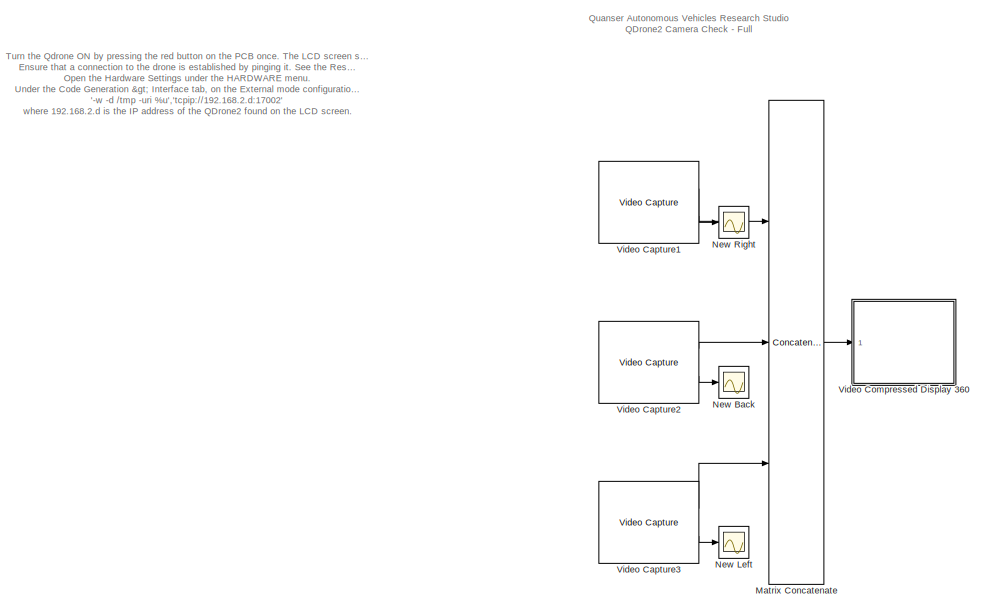
[diagram: root canvas - part 1/2, left side, full height]
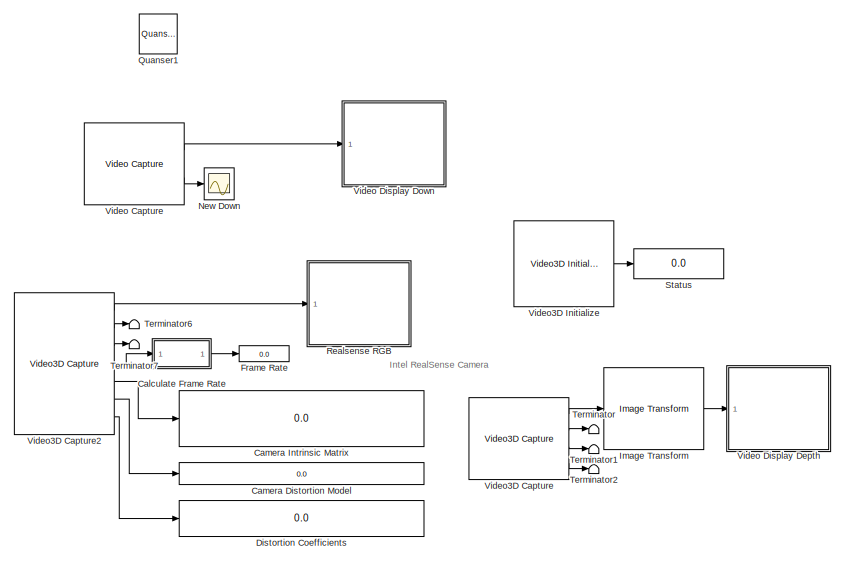
[diagram: root canvas - part 2/2, right side, full height]
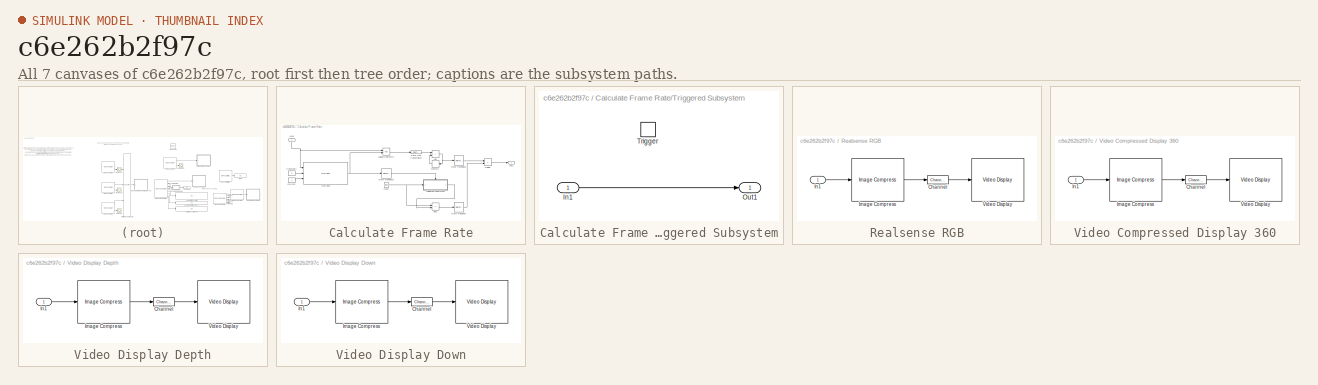
[diagram: thumbnail index - all 7 canvases of the model, root first then tree order]
MODEL slx_c6e262b2f97c
KIND model
CONFIG AbsTol = auto
CONFIG EnableMultiTasking = on
CONFIG FixedStep = 0.002
CONFIG MaxStep = auto
CONFIG MinStep = auto
CONFIG RelTol = 1e-3
CONFIG SampleTimeConstraint = Unconstrained
CONFIG SolverName = ode2
CONFIG StartTime = 0.0
CONFIG StopTime = inf
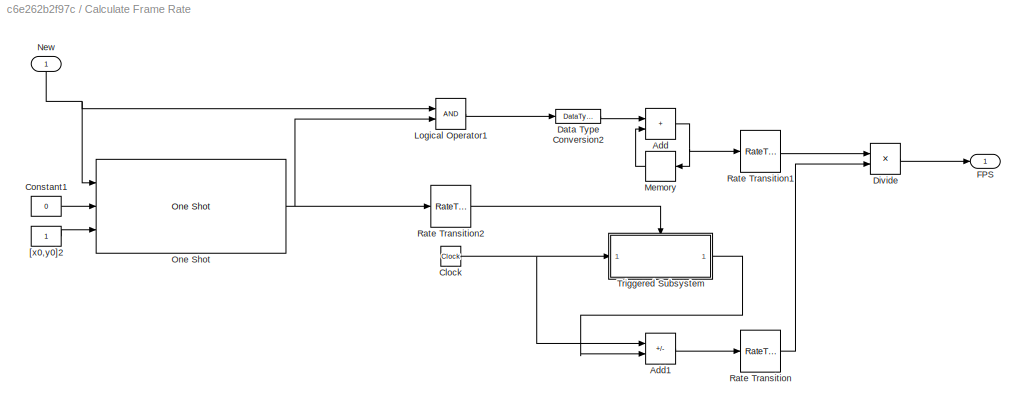
BLOCK [SubSystem] Calculate Frame Rate
  Ports = [1, 1]
  RequestExecContextInheritance = off
BLOCK [Sum] Calculate Frame Rate/Add
  IconShape = rectangular
  NameLocation = top
  Ports = [2, 1]
BLOCK [Sum] Calculate Frame Rate/Add1
  IconShape = rectangular
  Inputs = +-
  Ports = [2, 1]
BLOCK [Clock] Calculate Frame Rate/Clock
  Decimation = 1
BLOCK [Constant] Calculate Frame Rate/Constant1
  Value = 0
BLOCK [DataTypeConversion] Calculate Frame Rate/Data Type Conversion2
  RndMeth = Floor
  SaturateOnIntegerOverflow = off
BLOCK [Product] Calculate Frame Rate/Divide
  Inputs = */
  Ports = [2, 1]
BLOCK [Outport] Calculate Frame Rate/FPS
BLOCK [Logic] Calculate Frame Rate/Logical Operator1
  AllPortsSameDT = off
  OutDataTypeStr = boolean
  Ports = [2, 1]
BLOCK [Memory] Calculate Frame Rate/Memory
  InheritSampleTime = on
BLOCK [Inport] Calculate Frame Rate/New
  NameLocation = right
BLOCK [Reference] Calculate Frame Rate/One Shot  REF=quarc_library/Discontinuities/One Shot
  Ports = [3, 1]
  SourceBlock = quarc_library/Discontinuities/One Shot
  SourceProductName = QUARC Targets
  SourceType = One Shot
BLOCK [RateTransition] Calculate Frame Rate/Rate Transition
BLOCK [RateTransition] Calculate Frame Rate/Rate Transition1
BLOCK [RateTransition] Calculate Frame Rate/Rate Transition2
BLOCK [SubSystem] Calculate Frame Rate/Triggered Subsystem
  Ports = [1, 1, 0, 1]
  RequestExecContextInheritance = off
  TreatAsAtomicUnit = on
BLOCK [Inport] Calculate Frame Rate/Triggered Subsystem/In1
BLOCK [Outport] Calculate Frame Rate/Triggered Subsystem/Out1
BLOCK [TriggerPort] Calculate Frame Rate/Triggered Subsystem/Trigger
  Ports = []
  StatesWhenEnabling = held
  VariantControl = Variant
BLOCK [Constant] Calculate Frame Rate/[x0,y0]2
BLOCK [Display] Camera Distortion Model
  Decimation = 1
  Ports = [1]
BLOCK [Display] Camera Intrinsic Matrix
  Decimation = 1
  Ports = [1]
BLOCK [Display] Distortion Coefficients
  Decimation = 1
  Ports = [1]
BLOCK [Display] Frame Rate
  Decimation = 1
  Ports = [1]
BLOCK [Reference] Image Transform  REF=quarc_library/Image Processing/Generic/Image Transform
  AttributesFormatString = (%<algorithm>)
  Ports = [1, 1]
  SourceBlock = quarc_library/Image Processing/Generic/Image Transform
  SourceProductName = QUARC Targets
  SourceType = Image Transform
BLOCK [Concatenate] Matrix Concatenate
  ConcatenateDimension = 2
  Mode = Multidimensional array
  NumInputs = 3
  Ports = [3, 1]
BLOCK [Scope] New Back
  Floating = off
  NumInputPorts = 1
  Ports = [1]
  ScopeSpecificationString = Simulink.scopes.TimeScopeBlockCfg('CurrentConfiguration', extmgr.ConfigurationSet(extmgr.Configuration('Core','General UI',true),extmgr.Configuration('Core','Source UI',true),extmgr.Configuration('Sources','WiredSimulink',true,'DataLoggingVariableName','ScopeData3','DataLoggingSaveFormat','StructureWithTime','DataLoggingLimitDataPoints',true,'DataLoggingDecimation','1','DataLoggingDecimateData',tr...<+1747ch>
BLOCK [Scope] New Down
  Floating = off
  NumInputPorts = 1
  Ports = [1]
  ScopeSpecificationString = Simulink.scopes.TimeScopeBlockCfg('CurrentConfiguration', extmgr.ConfigurationSet(extmgr.Configuration('Core','General UI',true),extmgr.Configuration('Core','Source UI',true),extmgr.Configuration('Sources','WiredSimulink',true,'DataLoggingSaveFormat','StructureWithTime','DataLoggingLimitDataPoints',true,'DataLoggingDecimation','1','DataLoggingDecimateData',true,'DataLoggingVariableName','ScopeData...<+1727ch>
BLOCK [Scope] New Left
  Floating = off
  NumInputPorts = 1
  Ports = [1]
  ScopeSpecificationString = Simulink.scopes.TimeScopeBlockCfg('CurrentConfiguration', extmgr.ConfigurationSet(extmgr.Configuration('Core','General UI',true),extmgr.Configuration('Core','Source UI',true),extmgr.Configuration('Sources','WiredSimulink',true,'DataLoggingVariableName','ScopeData5','DataLoggingSaveFormat','StructureWithTime','DataLoggingLimitDataPoints',true,'DataLoggingDecimation','1','DataLoggingDecimateData',tr...<+1707ch>
BLOCK [Scope] New Right
  Floating = off
  NumInputPorts = 1
  Ports = [1]
  ScopeSpecificationString = Simulink.scopes.TimeScopeBlockCfg('CurrentConfiguration', extmgr.ConfigurationSet(extmgr.Configuration('Core','General UI',true),extmgr.Configuration('Core','Source UI',true),extmgr.Configuration('Sources','WiredSimulink',true,'DataLoggingVariableName','ScopeData6','DataLoggingSaveFormat','StructureWithTime','DataLoggingLimitDataPoints',true,'DataLoggingDecimation','1','DataLoggingDecimateData',tr...<+1733ch>
BLOCK [Reference] Quanser1  REF=quarc_library/Logos/Quanser
  Ports = []
  SourceBlock = quarc_library/Logos/Quanser
  SourceProductName = QUARC Targets
  SourceType = Powered by Quanser
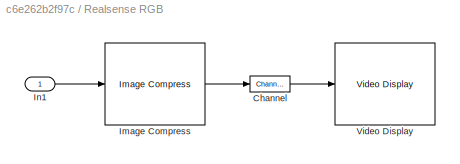
BLOCK [SubSystem] Realsense RGB
  CopyFcn = set_param(gcbh, 'UserData', gcb);\nset_param(gcbh, 'LinkStatus', 'none');
  LoadFcn = set_param(gcbh, 'UserData', gcb);
  NameChangeFcn = video_display_show([get_param(gcbh, 'UserData'), '/Video Display'], 'rename', [gcb, '/Video Display']);\nvideo_display_show([gcb, '/Video Display'], 'add', gcb);\nset_param(gcbh, 'UserData', gcb);  <repeated x4 — deduplicated; at blocks: Realsense RGB, Video Compressed Display 360, Video Display Depth, Video Display Down>
  OpenFcn = video_display_show([gcb, '/Video Display'], 'show', gcb);
  Ports = [1]
  PreDeleteFcn = video_display_show([gcb, '/Video Display'], 'delete');
  RequestExecContextInheritance = off
  StartFcn = video_display_show([gcb, '/Video Display'], 'add', gcb);
  UndoDeleteFcn = set_param(gcbh, 'UserData', gcb);
BLOCK [Reference] Realsense RGB/Channel  REF=quarc_library/Signal Routing/Channel
  Ports = [1, 1]
  SourceBlock = quarc_library/Signal Routing/Channel
  SourceProductName = QUARC Targets
  SourceType = Channel
BLOCK [Reference] Realsense RGB/Image Compress  REF=quarc_library/Image Processing/Generic/Image Compress
  AttributesFormatString = (%<algorithm>)
  Ports = [1, 1]
  SourceBlock = quarc_library/Image Processing/Generic/Image Compress
  SourceProductName = QUARC Targets
  SourceType = Image Compress
BLOCK [Inport] Realsense RGB/In1
BLOCK [Reference] Realsense RGB/Video Display  REF=quarc_library/Multimedia/Video Display
  Ports = [1]
  SourceBlock = quarc_library/Multimedia/Video Display
  SourceProductName = QUARC Targets
  SourceType = Video Display
  Tag = QD2_ReadCameras_2021b/Realsense RGB/Video Display
  UserDataPersistent = on
BLOCK [Display] Status
  Decimation = 1
  Ports = [1]
BLOCK [Terminator] Terminator
BLOCK [Terminator] Terminator1
BLOCK [Terminator] Terminator2
BLOCK [Terminator] Terminator6
BLOCK [Terminator] Terminator7
BLOCK [Reference] Video Capture  REF=quarc_library/Multimedia/Video Capture
  Ports = [0, 2]
  SourceBlock = quarc_library/Multimedia/Video Capture
  SourceProductName = QUARC Targets
  SourceType = Video Capture
BLOCK [Reference] Video Capture1  REF=quarc_library/Multimedia/Video Capture
  Ports = [0, 2]
  SourceBlock = quarc_library/Multimedia/Video Capture
  SourceProductName = QUARC Targets
  SourceType = Video Capture
BLOCK [Reference] Video Capture2  REF=quarc_library/Multimedia/Video Capture
  Ports = [0, 2]
  SourceBlock = quarc_library/Multimedia/Video Capture
  SourceProductName = QUARC Targets
  SourceType = Video Capture
BLOCK [Reference] Video Capture3  REF=quarc_library/Multimedia/Video Capture
  Ports = [0, 2]
  SourceBlock = quarc_library/Multimedia/Video Capture
  SourceProductName = QUARC Targets
  SourceType = Video Capture
BLOCK [SubSystem] Video Compressed Display 360
  CopyFcn = set_param(gcbh, 'UserData', gcb);\nset_param(gcbh, 'LinkStatus', 'none');
  LoadFcn = set_param(gcbh, 'UserData', gcb);
  OpenFcn = video_display_show([gcb, '/Video Display'], 'show', gcb);
  Ports = [1]
  PreDeleteFcn = video_display_show([gcb, '/Video Display'], 'delete');
  RequestExecContextInheritance = off
  StartFcn = video_display_show([gcb, '/Video Display'], 'add', gcb);
  UndoDeleteFcn = set_param(gcbh, 'UserData', gcb);
BLOCK [Reference] Video Compressed Display 360/Channel  REF=quarc_library/Signal Routing/Channel
  Ports = [1, 1]
  SourceBlock = quarc_library/Signal Routing/Channel
  SourceProductName = QUARC Targets
  SourceType = Channel
BLOCK [Reference] Video Compressed Display 360/Image Compress  REF=quarc_library/Image Processing/Generic/Image Compress
  AttributesFormatString = (%<algorithm>)
  Ports = [1, 1]
  SourceBlock = quarc_library/Image Processing/Generic/Image Compress
  SourceProductName = QUARC Targets
  SourceType = Image Compress
BLOCK [Inport] Video Compressed Display 360/In1
BLOCK [Reference] Video Compressed Display 360/Video Display  REF=quarc_library/Multimedia/Video Display
  Ports = [1]
  SourceBlock = quarc_library/Multimedia/Video Display
  SourceProductName = QUARC Targets
  SourceType = Video Display
  Tag = QD2_ReadCameras_2021b/Video Compressed\nDisplay 360/Video Display
  UserDataPersistent = on
BLOCK [SubSystem] Video Display Depth
  CopyFcn = set_param(gcbh, 'UserData', gcb);\nset_param(gcbh, 'LinkStatus', 'none');
  LoadFcn = set_param(gcbh, 'UserData', gcb);
  OpenFcn = video_display_show([gcb, '/Video Display'], 'show', gcb);
  Ports = [1]
  PreDeleteFcn = video_display_show([gcb, '/Video Display'], 'delete');
  RequestExecContextInheritance = off
  StartFcn = video_display_show([gcb, '/Video Display'], 'add', gcb);
  UndoDeleteFcn = set_param(gcbh, 'UserData', gcb);
BLOCK [Reference] Video Display Depth/Channel  REF=quarc_library/Signal Routing/Channel
  Ports = [1, 1]
  SourceBlock = quarc_library/Signal Routing/Channel
  SourceProductName = QUARC Targets
  SourceType = Channel
BLOCK [Reference] Video Display Depth/Image Compress  REF=quarc_library/Image Processing/Generic/Image Compress
  AttributesFormatString = (%<algorithm>)
  Ports = [1, 1]
  SourceBlock = quarc_library/Image Processing/Generic/Image Compress
  SourceProductName = QUARC Targets
  SourceType = Image Compress
BLOCK [Inport] Video Display Depth/In1
BLOCK [Reference] Video Display Depth/Video Display  REF=quarc_library/Multimedia/Video Display
  Ports = [1]
  SourceBlock = quarc_library/Multimedia/Video Display
  SourceProductName = QUARC Targets
  SourceType = Video Display
  Tag = QD2_ReadCameras_2021b/Video Display Depth/Video Display
  UserDataPersistent = on
BLOCK [SubSystem] Video Display Down
  CopyFcn = set_param(gcbh, 'UserData', gcb);\nset_param(gcbh, 'LinkStatus', 'none');
  LoadFcn = set_param(gcbh, 'UserData', gcb);
  OpenFcn = video_display_show([gcb, '/Video Display'], 'show', gcb);
  Ports = [1]
  PreDeleteFcn = video_display_show([gcb, '/Video Display'], 'delete');
  RequestExecContextInheritance = off
  StartFcn = video_display_show([gcb, '/Video Display'], 'add', gcb);
  UndoDeleteFcn = set_param(gcbh, 'UserData', gcb);
BLOCK [Reference] Video Display Down/Channel  REF=quarc_library/Signal Routing/Channel
  Ports = [1, 1]
  SourceBlock = quarc_library/Signal Routing/Channel
  SourceProductName = QUARC Targets
  SourceType = Channel
BLOCK [Reference] Video Display Down/Image Compress  REF=quarc_library/Image Processing/Generic/Image Compress
  AttributesFormatString = (%<algorithm>)
  Ports = [1, 1]
  SourceBlock = quarc_library/Image Processing/Generic/Image Compress
  SourceProductName = QUARC Targets
  SourceType = Image Compress
BLOCK [Inport] Video Display Down/In1
BLOCK [Reference] Video Display Down/Video Display  REF=quarc_library/Multimedia/Video Display
  Ports = [1]
  SourceBlock = quarc_library/Multimedia/Video Display
  SourceProductName = QUARC Targets
  SourceType = Video Display
  Tag = QD2_ReadCameras_2021b/Video Display Down/Video Display
  UserDataPersistent = on
BLOCK [Reference] Video3D Capture  REF=quarc_library/Multimedia/Video3D Capture
  Ports = [0, 4]
  SourceBlock = quarc_library/Multimedia/Video3D Capture
  SourceProductName = QUARC Targets
  SourceType = Video3D Capture
  UserDataPersistent = on
BLOCK [Reference] Video3D Capture2  REF=quarc_library/Multimedia/Video3D Capture
  Ports = [0, 7]
  SourceBlock = quarc_library/Multimedia/Video3D Capture
  SourceProductName = QUARC Targets
  SourceType = Video3D Capture
  UserDataPersistent = on
BLOCK [Reference] Video3D Initialize  REF=quarc_library/Multimedia/Video3D Initialize
  Ports = [0, 1]
  SourceBlock = quarc_library/Multimedia/Video3D Initialize
  SourceProductName = QUARC Targets
  SourceType = Video3D Initialize
ANNOTATION (root): Turn the Qdrone ON by pressing the red button on the PCB once. The LCD screen should turn on. Ensure that a connection to the drone is established by pinging it. See the Research Studio Setup documentation (the Communicating with the QDrone section). Open the Hardware Settings under the HARDWARE menu. Under the Code Generation > Interface tab, on the External mode configuration, enter the followin...<+1719ch>
ANNOTATION (root): Intel RealSense Camera
ANNOTATION (root): Quanser Autonomous Vehicles Research Studio QDrone2 Camera Check - Full
LINE Calculate Frame Rate/Add1:1 -> Calculate Frame Rate/Rate Transition:1
NET Calculate Frame Rate/Add:1 -> Calculate Frame Rate/Memory:1, Calculate Frame Rate/Rate Transition1:1
NET Calculate Frame Rate/Clock:1 -> Calculate Frame Rate/Add1:1, Calculate Frame Rate/Triggered Subsystem:1
LINE Calculate Frame Rate/Constant1:1 -> Calculate Frame Rate/One Shot:2
LINE Calculate Frame Rate/Data Type Conversion2:1 -> Calculate Frame Rate/Add:1
LINE Calculate Frame Rate/Divide:1 -> Calculate Frame Rate/FPS:1
LINE Calculate Frame Rate/Logical Operator1:1 -> Calculate Frame Rate/Data Type Conversion2:1
LINE Calculate Frame Rate/Memory:1 -> Calculate Frame Rate/Add:2
NET Calculate Frame Rate/New:1 -> Calculate Frame Rate/Logical Operator1:1, Calculate Frame Rate/One Shot:1
NET Calculate Frame Rate/One Shot:1 -> Calculate Frame Rate/Logical Operator1:2, Calculate Frame Rate/Rate Transition2:1
LINE Calculate Frame Rate/Rate Transition1:1 -> Calculate Frame Rate/Divide:1
LINE Calculate Frame Rate/Rate Transition2:1 -> Calculate Frame Rate/Triggered Subsystem:trigger
LINE Calculate Frame Rate/Rate Transition:1 -> Calculate Frame Rate/Divide:2
LINE Calculate Frame Rate/Triggered Subsystem/In1:1 -> Calculate Frame Rate/Triggered Subsystem/Out1:1
LINE Calculate Frame Rate/Triggered Subsystem:1 -> Calculate Frame Rate/Add1:2
LINE Calculate Frame Rate/[x0,y0]2:1 -> Calculate Frame Rate/One Shot:3
LINE Calculate Frame Rate:1 -> Frame Rate:1
LINE Image Transform:1 -> Video Display Depth:1
LINE Matrix Concatenate:1 -> Video Compressed Display 360:1
LINE Video Capture1:1 -> Matrix Concatenate:1
LINE Video Capture1:2 -> New Right:1
LINE Video Capture2:1 -> Matrix Concatenate:2
LINE Video Capture2:2 -> New Back:1
LINE Video Capture3:1 -> Matrix Concatenate:3
LINE Video Capture3:2 -> New Left:1
LINE Video Capture:1 -> Video Display Down:1
LINE Video Capture:2 -> New Down:1
LINE Video3D Capture2:1 -> Realsense RGB:1
LINE Video3D Capture2:2 -> Terminator6:1
LINE Video3D Capture2:3 -> Terminator7:1
LINE Video3D Capture2:4 -> Calculate Frame Rate:1
LINE Video3D Capture2:5 -> Camera Intrinsic Matrix:1
LINE Video3D Capture2:6 -> Camera Distortion Model:1
LINE Video3D Capture2:7 -> Distortion Coefficients:1
LINE Video3D Capture:1 -> Image Transform:1
LINE Video3D Capture:2 -> Terminator:1
LINE Video3D Capture:3 -> Terminator1:1
LINE Video3D Capture:4 -> Terminator2:1
LINE Video3D Initialize:1 -> Status:1
note: NET lines group one-source signal fan-out (src -> all destinations, sorted); 1:1 wires keep LINE
